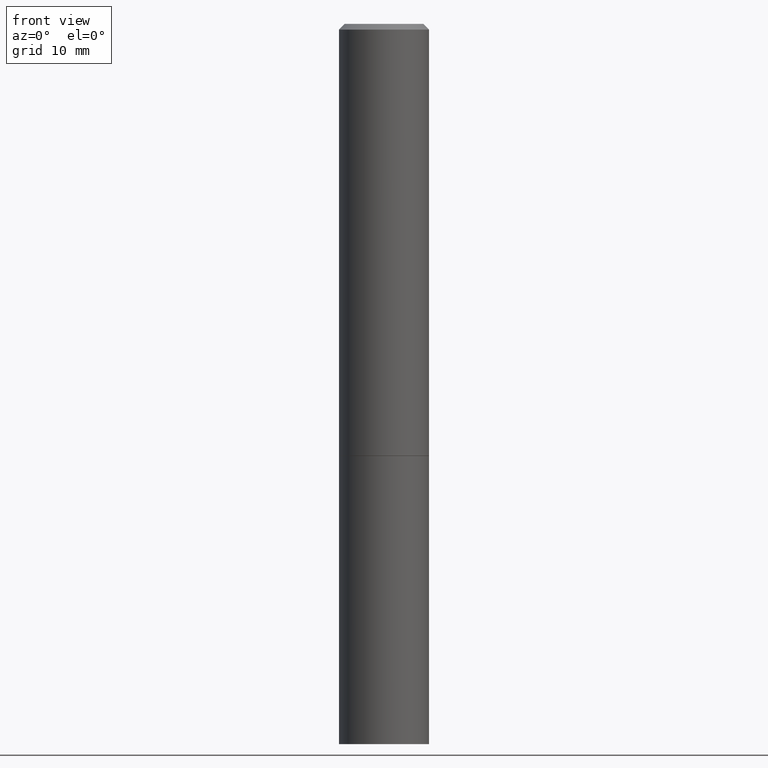
[diagram: clean part render]
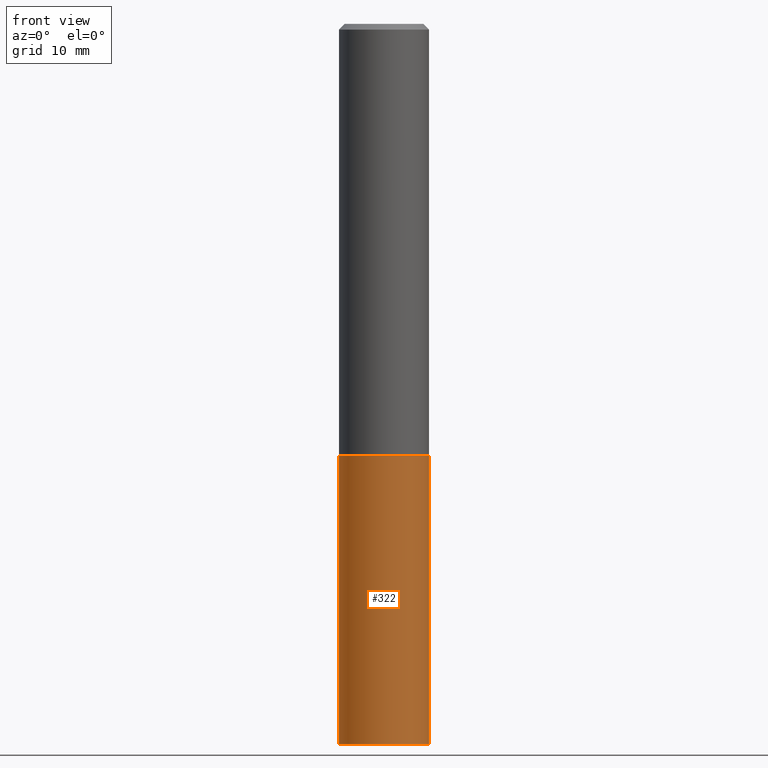
[diagram: same view with one face highlighted and labeled with its STEP entity id]
A machine part, front view. The second image highlights one B-rep face of the part: STEP entity #322.
In plain terms, the highlighted cylindrical surface (partial cylindrical patch) has radius 3.9688 mm, axis along (-0, 0, 1).
Its self-contained STEP definition (entity closure, byte-faithful):
#23 = VERTEX_POINT ( 'NONE', #46 ) ;
#29 = DIRECTION ( 'NONE',  ( 1.000000000000000000, -6.982962677686266711E-15, 4.876176775795936353E-29 ) ) ;
#31 = EDGE_CURVE ( 'NONE', #280, #23, #163, .T. ) ;
#39 = EDGE_CURVE ( 'NONE', #119, #55, #79, .T. ) ;
#46 = CARTESIAN_POINT ( 'NONE',  ( -0.1562500000000000000, -5.872739653061135414E-15, -1.500000000000000222 ) ) ;
#49 = DIRECTION ( 'NONE',  ( -2.445468806185136877E-29, 3.491481338843145188E-15, 1.000000000000000000 ) ) ;
#55 = VERTEX_POINT ( 'NONE', #106 ) ;
#79 = LINE ( 'NONE', #198, #85 ) ;
#85 = VECTOR ( 'NONE', #49, 39.37007874015748143 ) ;
#86 = EDGE_CURVE ( 'NONE', #280, #119, #138, .T. ) ;
#106 = CARTESIAN_POINT ( 'NONE',  ( 0.1562500000000000000, -6.328309926653198139E-15, -1.500000000000000222 ) ) ;
#107 = EDGE_LOOP ( 'NONE', ( #246, #134, #194, #327 ) ) ;
#108 = DIRECTION ( 'NONE',  ( -2.445468806185136597E-29, 3.491481338843145583E-15, 1.000000000000000000 ) ) ;
#109 = CARTESIAN_POINT ( 'NONE',  ( 0.1562500000000000000, -9.819791265496344905E-15, -2.500000000000000000 ) ) ;
#119 = VERTEX_POINT ( 'NONE', #109 ) ;
#127 = DIRECTION ( 'NONE',  ( 1.000000000000000000, -6.982962677686269077E-15, 0.000000000000000000 ) ) ;
#134 = ORIENTED_EDGE ( 'NONE', *, *, #86, .T. ) ;
#138 = CIRCLE ( 'NONE', #221, 0.1562500000000000000 ) ;
#160 = VECTOR ( 'NONE', #361, 39.37007874015748143 ) ;
#163 = LINE ( 'NONE', #287, #160 ) ;
#177 = FACE_OUTER_BOUND ( 'NONE', #107, .T. ) ;
#193 = AXIS2_PLACEMENT_3D ( 'NONE', #236, #339, #29 ) ;
#194 = ORIENTED_EDGE ( 'NONE', *, *, #39, .T. ) ;
#198 = CARTESIAN_POINT ( 'NONE',  ( 0.1562500000000000000, -1.091087918388479174E-15, 7.619026212181150377E-30 ) ) ;
#206 = AXIS2_PLACEMENT_3D ( 'NONE', #338, #108, #207 ) ;
#207 = DIRECTION ( 'NONE',  ( 1.000000000000000000, -6.982962677686269077E-15, 0.000000000000000000 ) ) ;
#221 = AXIS2_PLACEMENT_3D ( 'NONE', #266, #318, #127 ) ;
#236 = CARTESIAN_POINT ( 'NONE',  ( 0.000000000000000000, 0.000000000000000000, 0.000000000000000000 ) ) ;
#246 = ORIENTED_EDGE ( 'NONE', *, *, #31, .F. ) ;
#263 = CIRCLE ( 'NONE', #206, 0.1562500000000000000 ) ;
#266 = CARTESIAN_POINT ( 'NONE',  ( 6.113672015462842613E-29, -8.728703347107864943E-15, -2.500000000000000000 ) ) ;
#280 = VERTEX_POINT ( 'NONE', #291 ) ;
#287 = CARTESIAN_POINT ( 'NONE',  ( -0.1562500000000000000, 1.110223024625156540E-15, -7.685836078523291160E-30 ) ) ;
#291 = CARTESIAN_POINT ( 'NONE',  ( -0.1562500000000000000, -5.872739653061135414E-15, -2.500000000000000000 ) ) ;
#298 = CYLINDRICAL_SURFACE ( 'NONE', #193, 0.1562500000000000000 ) ;
#305 = EDGE_CURVE ( 'NONE', #23, #55, #263, .T. ) ;
#318 = DIRECTION ( 'NONE',  ( -2.445468806185136597E-29, 3.491481338843145583E-15, 1.000000000000000000 ) ) ;
#322 = ADVANCED_FACE ( 'NONE', ( #177 ), #298, .T. ) ;
#327 = ORIENTED_EDGE ( 'NONE', *, *, #305, .F. ) ;
#338 = CARTESIAN_POINT ( 'NONE',  ( 3.668203209277704895E-29, -5.237222008264718177E-15, -1.500000000000000222 ) ) ;
#339 = DIRECTION ( 'NONE',  ( -2.445468806185136597E-29, 3.491481338843145583E-15, 1.000000000000000000 ) ) ;
#361 = DIRECTION ( 'NONE',  ( -2.445468806185136877E-29, 3.491481338843145188E-15, 1.000000000000000000 ) ) ;